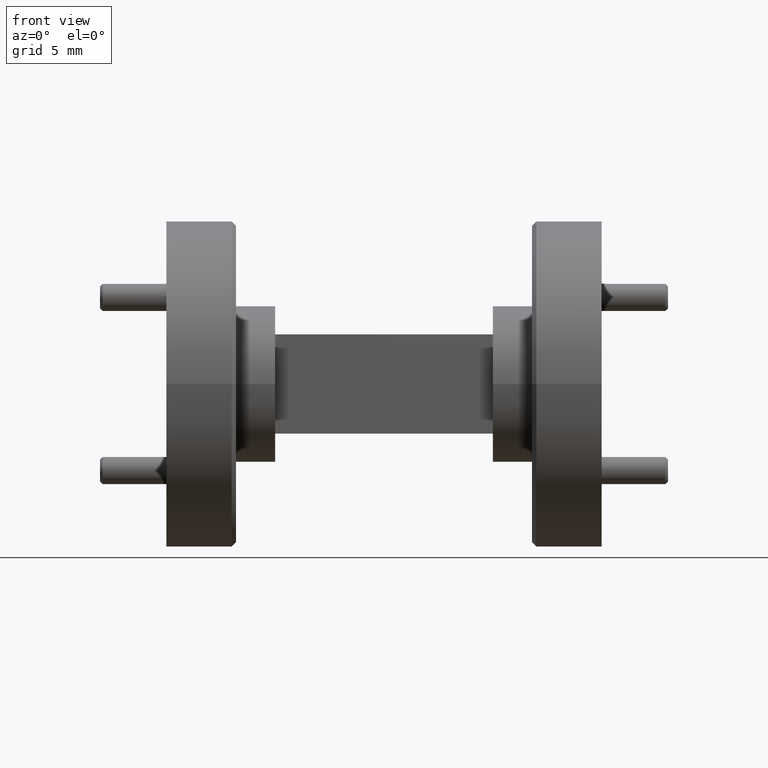
[diagram: clean part render]
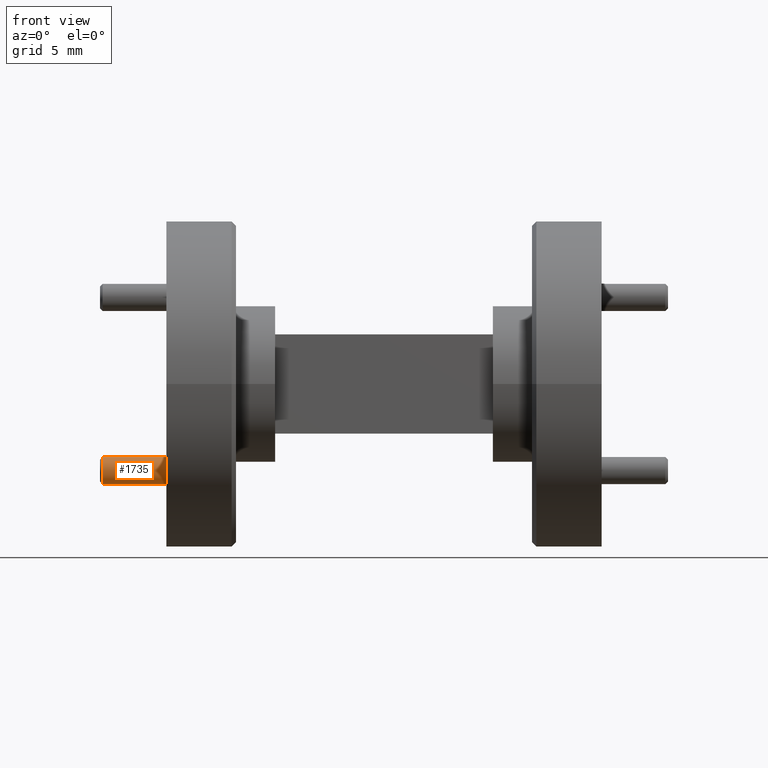
[diagram: same view with one face highlighted and labeled with its STEP entity id]
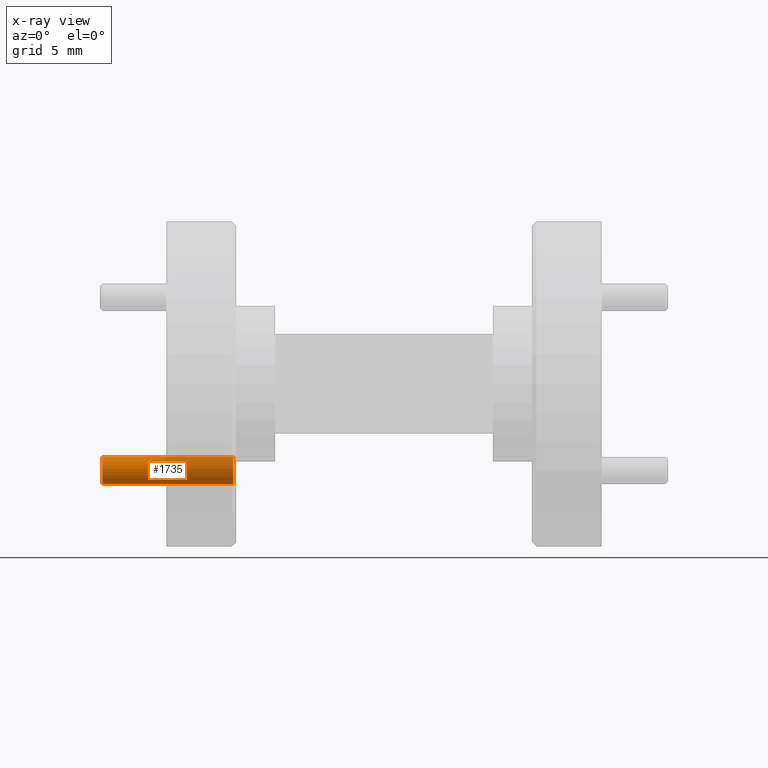
[diagram: x-ray of the same camera — body ghosted, the highlighted face saturated]
A machine part, front view. The second image highlights one B-rep face of the part: STEP entity #1735.
The next image is the same camera in x-ray: the body ghosted, the highlighted face saturated — about 51% of this face is hidden behind the body in this view.
In plain terms, the highlighted cylindrical surface (edge-blend (fillet) strip) has radius 0.7937 mm, axis along (-1, -0, 0).
Its self-contained STEP definition (entity closure, byte-faithful):
#120 = CIRCLE ( 'NONE', #4864, 0.03125000000000002082 ) ;
#172 = VERTEX_POINT ( 'NONE', #4102 ) ;
#237 = ORIENTED_EDGE ( 'NONE', *, *, #1216, .T. ) ;
#264 = CARTESIAN_POINT ( 'NONE',  ( 0.1599999999999985600, 0.1988737822087169871, -0.1988737822087134899 ) ) ;
#404 = VERTEX_POINT ( 'NONE', #684 ) ;
#684 = CARTESIAN_POINT ( 'NONE',  ( -0.1462500000000016565, 0.1982199890563704769, -0.2301169423323919105 ) ) ;
#983 = DIRECTION ( 'NONE',  ( -1.000000000000000000, -2.449293598294706907E-16, 6.982962677686266711E-15 ) ) ;
#1171 = VECTOR ( 'NONE', #6504, 39.37007874015748143 ) ;
#1216 = EDGE_CURVE ( 'NONE', #172, #404, #6838, .T. ) ;
#1483 = AXIS2_PLACEMENT_3D ( 'NONE', #264, #5392, #3653 ) ;
#1526 = ORIENTED_EDGE ( 'NONE', *, *, #4662, .T. ) ;
#1735 = ADVANCED_FACE ( 'NONE', ( #3613 ), #2484, .T. ) ;
#1968 = CARTESIAN_POINT ( 'NONE',  ( 0.1599999999999987821, 0.1995275753610635250, -0.1676306220850329043 ) ) ;
#2481 = VERTEX_POINT ( 'NONE', #2498 ) ;
#2484 = CYLINDRICAL_SURFACE ( 'NONE', #1483, 0.03124999999999998959 ) ;
#2498 = CARTESIAN_POINT ( 'NONE',  ( 0.1537499999999983324, 0.1982199890563704214, -0.2301169423323940200 ) ) ;
#2615 = DIRECTION ( 'NONE',  ( 7.102804783527080029E-15, 0.02092138087508853272, 0.9997811239577789610 ) ) ;
#3177 = VERTEX_POINT ( 'NONE', #3759 ) ;
#3344 = ORIENTED_EDGE ( 'NONE', *, *, #6312, .F. ) ;
#3613 = FACE_OUTER_BOUND ( 'NONE', #5050, .T. ) ;
#3653 = DIRECTION ( 'NONE',  ( 6.556435184794234091E-15, 0.02092138087508855354, 0.9997811239577788500 ) ) ;
#3666 = DIRECTION ( 'NONE',  ( 7.102804783527080029E-15, 0.02092138087508853272, 0.9997811239577789610 ) ) ;
#3678 = VECTOR ( 'NONE', #4755, 39.37007874015748143 ) ;
#3743 = ORIENTED_EDGE ( 'NONE', *, *, #5171, .T. ) ;
#3759 = CARTESIAN_POINT ( 'NONE',  ( 0.1537499999999987765, 0.1995275753610635250, -0.1676306220850328210 ) ) ;
#4102 = CARTESIAN_POINT ( 'NONE',  ( -0.1462500000000012124, 0.1995275753610634417, -0.1676306220850307116 ) ) ;
#4662 = EDGE_CURVE ( 'NONE', #2481, #3177, #120, .T. ) ;
#4755 = DIRECTION ( 'NONE',  ( -1.000000000000000000, -2.449293598294706907E-16, 6.982962677686265922E-15 ) ) ;
#4864 = AXIS2_PLACEMENT_3D ( 'NONE', #6633, #983, #2615 ) ;
#5050 = EDGE_LOOP ( 'NONE', ( #3344, #1526, #3743, #237 ) ) ;
#5171 = EDGE_CURVE ( 'NONE', #3177, #172, #5478, .T. ) ;
#5392 = DIRECTION ( 'NONE',  ( -1.000000000000000000, -2.449293598294706907E-16, 6.982962677686266711E-15 ) ) ;
#5478 = LINE ( 'NONE', #1968, #1171 ) ;
#5963 = DIRECTION ( 'NONE',  ( 1.000000000000000000, 2.449293598294706907E-16, -6.982962677686266711E-15 ) ) ;
#5986 = CARTESIAN_POINT ( 'NONE',  ( 0.1599999999999983658, 0.1982199890563704769, -0.2301169423323940477 ) ) ;
#6121 = AXIS2_PLACEMENT_3D ( 'NONE', #6515, #5963, #3666 ) ;
#6312 = EDGE_CURVE ( 'NONE', #2481, #404, #6538, .T. ) ;
#6504 = DIRECTION ( 'NONE',  ( -1.000000000000000000, -2.449293598294706907E-16, 6.982962677686265922E-15 ) ) ;
#6515 = CARTESIAN_POINT ( 'NONE',  ( -0.1462500000000014344, 0.1988737822087169316, -0.1988737822087113249 ) ) ;
#6538 = LINE ( 'NONE', #5986, #3678 ) ;
#6633 = CARTESIAN_POINT ( 'NONE',  ( 0.1537499999999985545, 0.1988737822087169871, -0.1988737822087134344 ) ) ;
#6838 = CIRCLE ( 'NONE', #6121, 0.03125000000000002082 ) ;